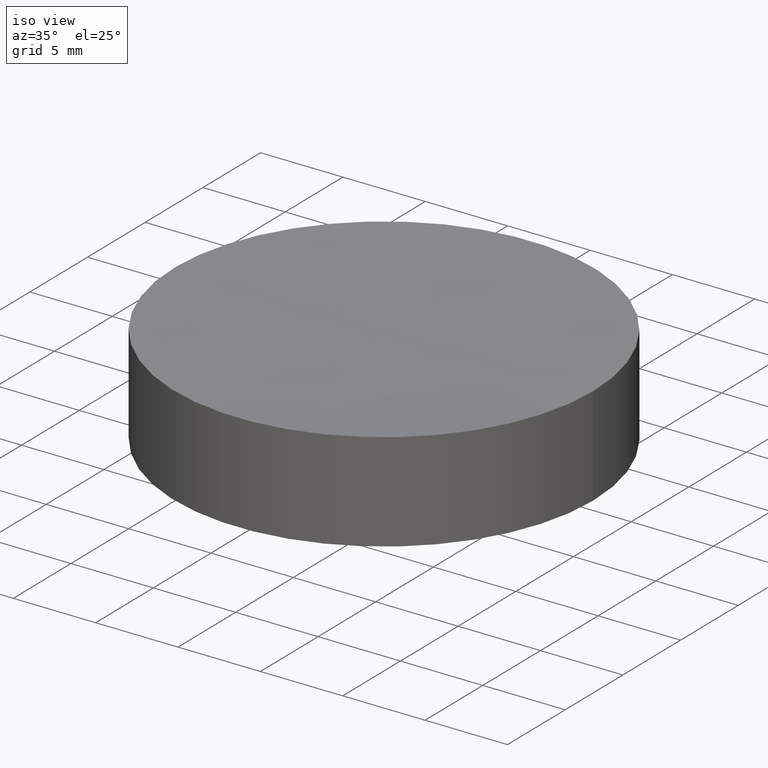
[diagram: clean part render]
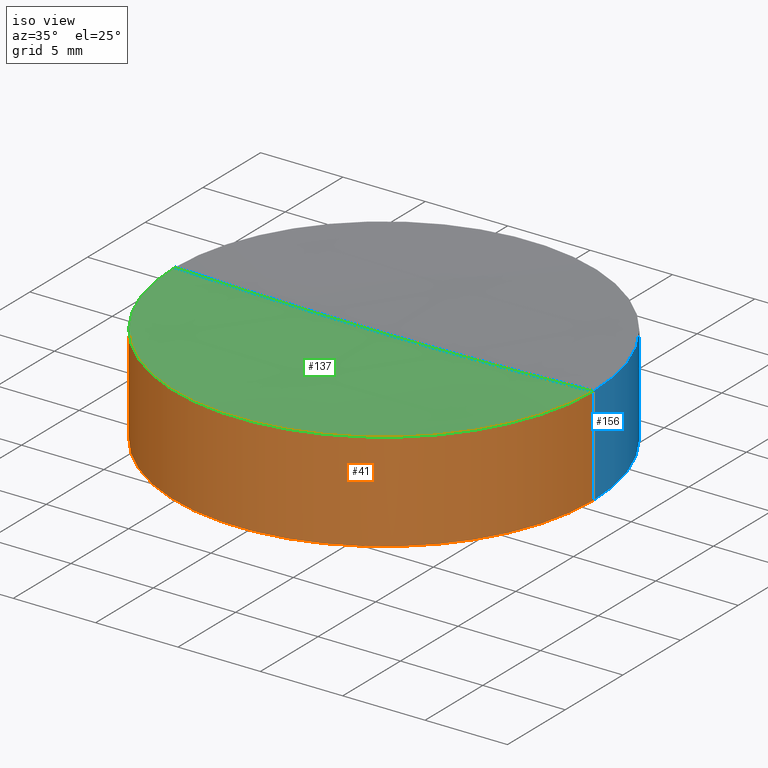
[diagram: same view with three faces highlighted in distinct colors, each labeled with its STEP entity id]
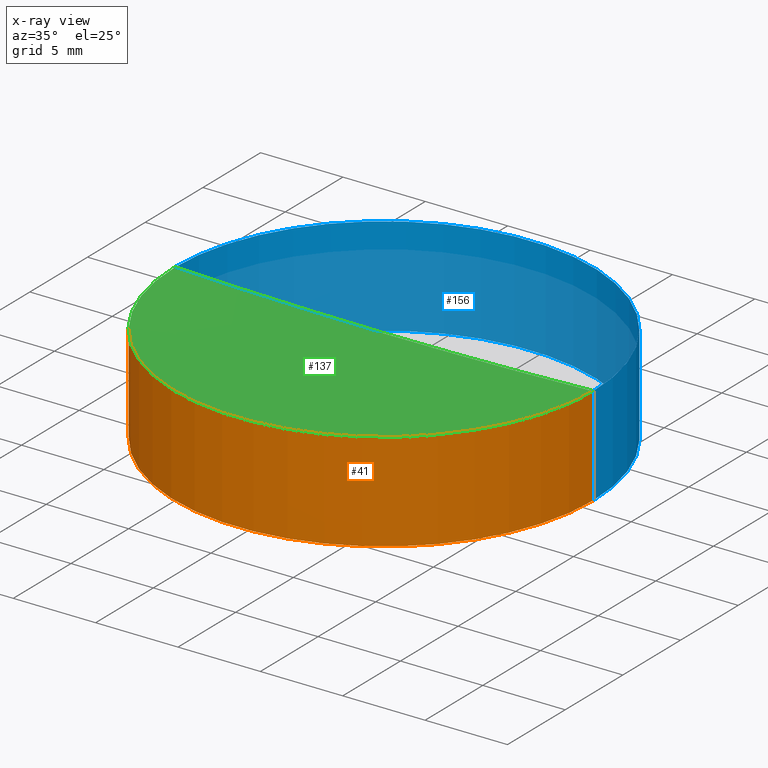
[diagram: x-ray of the same camera — body ghosted, the three highlighted faces saturated]
A machine part, iso view with three faces highlighted in distinct colors.
The next image is the same camera in x-ray (body ghosted, the three faces saturated) — at least one of them is partly hidden behind the body in this view.
Their STEP definitions:

[orange] entity #41 — the highlighted cylindrical surface (partial cylindrical patch) has radius 12.7 mm, axis along (-0, -0, -1).
#1 = VECTOR ( 'NONE', #40, 1000.000000000000000 ) ;
#3 = EDGE_LOOP ( 'NONE', ( #187, #109, #131, #34 ) ) ;
#4 = EDGE_CURVE ( 'NONE', #97, #45, #135, .T. ) ;
#6 = CARTESIAN_POINT ( 'NONE',  ( -12.69999999999999929, 0.000000000000000000, 0.000000000000000000 ) ) ;
#8 = FACE_OUTER_BOUND ( 'NONE', #3, .T. ) ;
#9 = CARTESIAN_POINT ( 'NONE',  ( 4.510281037539698445E-14, 0.000000000000000000, 6.000000000000005329 ) ) ;
#15 = VECTOR ( 'NONE', #146, 1000.000000000000000 ) ;
#21 = LINE ( 'NONE', #133, #1 ) ;
#22 = DIRECTION ( 'NONE',  ( 0.000000000000000000, 0.000000000000000000, 1.000000000000000000 ) ) ;
#24 = CARTESIAN_POINT ( 'NONE',  ( 0.000000000000000000, 0.000000000000000000, 6.000000000000000000 ) ) ;
#34 = ORIENTED_EDGE ( 'NONE', *, *, #185, .T. ) ;
#35 = DIRECTION ( 'NONE',  ( 1.000000000000000000, 0.000000000000000000, 0.000000000000000000 ) ) ;
#40 = DIRECTION ( 'NONE',  ( -0.000000000000000000, -0.000000000000000000, -1.000000000000000000 ) ) ;
#41 = ADVANCED_FACE ( 'NONE', ( #8 ), #72, .T. ) ;
#45 = VERTEX_POINT ( 'NONE', #147 ) ;
#46 = VERTEX_POINT ( 'NONE', #6 ) ;
#55 = DIRECTION ( 'NONE',  ( 1.000000000000000000, 0.000000000000000000, 0.000000000000000000 ) ) ;
#56 = AXIS2_PLACEMENT_3D ( 'NONE', #24, #117, #84 ) ;
#65 = CIRCLE ( 'NONE', #119, 12.69999999999999929 ) ;
#67 = AXIS2_PLACEMENT_3D ( 'NONE', #9, #68, #35 ) ;
#68 = DIRECTION ( 'NONE',  ( -0.000000000000000000, -0.000000000000000000, -1.000000000000000000 ) ) ;
#72 = CYLINDRICAL_SURFACE ( 'NONE', #56, 12.69999999999999929 ) ;
#84 = DIRECTION ( 'NONE',  ( -1.000000000000000000, 0.000000000000000000, 0.000000000000000000 ) ) ;
#97 = VERTEX_POINT ( 'NONE', #98 ) ;
#98 = CARTESIAN_POINT ( 'NONE',  ( 12.69999999999982698, 1.555301434917128177E-15, 6.000000000000005329 ) ) ;
#99 = CARTESIAN_POINT ( 'NONE',  ( 0.000000000000000000, 0.000000000000000000, 0.000000000000000000 ) ) ;
#108 = CIRCLE ( 'NONE', #67, 12.69999999999978257 ) ;
#109 = ORIENTED_EDGE ( 'NONE', *, *, #116, .T. ) ;
#116 = EDGE_CURVE ( 'NONE', #97, #158, #108, .T. ) ;
#117 = DIRECTION ( 'NONE',  ( -0.000000000000000000, -0.000000000000000000, -1.000000000000000000 ) ) ;
#119 = AXIS2_PLACEMENT_3D ( 'NONE', #99, #22, #55 ) ;
#131 = ORIENTED_EDGE ( 'NONE', *, *, #199, .T. ) ;
#133 = CARTESIAN_POINT ( 'NONE',  ( -12.69999999999999929, 0.000000000000000000, 6.000000000000000000 ) ) ;
#135 = LINE ( 'NONE', #192, #15 ) ;
#146 = DIRECTION ( 'NONE',  ( -0.000000000000000000, -0.000000000000000000, -1.000000000000000000 ) ) ;
#147 = CARTESIAN_POINT ( 'NONE',  ( 12.69999999999999929, 1.555301434917138433E-15, 0.000000000000000000 ) ) ;
#158 = VERTEX_POINT ( 'NONE', #175 ) ;
#175 = CARTESIAN_POINT ( 'NONE',  ( -12.69999999999973817, 0.000000000000000000, 6.000000000000005329 ) ) ;
#185 = EDGE_CURVE ( 'NONE', #46, #45, #65, .T. ) ;
#187 = ORIENTED_EDGE ( 'NONE', *, *, #4, .F. ) ;
#192 = CARTESIAN_POINT ( 'NONE',  ( 12.69999999999999929, 1.555301434917138433E-15, 6.000000000000000000 ) ) ;
#199 = EDGE_CURVE ( 'NONE', #158, #46, #21, .T. ) ;

[blue] entity #156 — the highlighted cylindrical surface (partial cylindrical patch) has radius 12.7 mm, axis along (-0, -0, -1).
#1 = VECTOR ( 'NONE', #40, 1000.000000000000000 ) ;
#4 = EDGE_CURVE ( 'NONE', #97, #45, #135, .T. ) ;
#6 = CARTESIAN_POINT ( 'NONE',  ( -12.69999999999999929, 0.000000000000000000, 0.000000000000000000 ) ) ;
#15 = VECTOR ( 'NONE', #146, 1000.000000000000000 ) ;
#18 = EDGE_LOOP ( 'NONE', ( #66, #188, #83, #191 ) ) ;
#19 = CIRCLE ( 'NONE', #74, 12.69999999999978257 ) ;
#21 = LINE ( 'NONE', #133, #1 ) ;
#36 = AXIS2_PLACEMENT_3D ( 'NONE', #134, #150, #47 ) ;
#38 = DIRECTION ( 'NONE',  ( 1.000000000000000000, 0.000000000000000000, 0.000000000000000000 ) ) ;
#40 = DIRECTION ( 'NONE',  ( -0.000000000000000000, -0.000000000000000000, -1.000000000000000000 ) ) ;
#45 = VERTEX_POINT ( 'NONE', #147 ) ;
#46 = VERTEX_POINT ( 'NONE', #6 ) ;
#47 = DIRECTION ( 'NONE',  ( 1.000000000000000000, 0.000000000000000000, 0.000000000000000000 ) ) ;
#48 = DIRECTION ( 'NONE',  ( -0.000000000000000000, -0.000000000000000000, -1.000000000000000000 ) ) ;
#53 = DIRECTION ( 'NONE',  ( -0.000000000000000000, -0.000000000000000000, -1.000000000000000000 ) ) ;
#64 = EDGE_CURVE ( 'NONE', #45, #46, #170, .T. ) ;
#66 = ORIENTED_EDGE ( 'NONE', *, *, #151, .T. ) ;
#74 = AXIS2_PLACEMENT_3D ( 'NONE', #115, #53, #38 ) ;
#83 = ORIENTED_EDGE ( 'NONE', *, *, #64, .T. ) ;
#97 = VERTEX_POINT ( 'NONE', #98 ) ;
#98 = CARTESIAN_POINT ( 'NONE',  ( 12.69999999999982698, 1.555301434917128177E-15, 6.000000000000005329 ) ) ;
#101 = FACE_OUTER_BOUND ( 'NONE', #18, .T. ) ;
#115 = CARTESIAN_POINT ( 'NONE',  ( 4.510281037539698445E-14, 0.000000000000000000, 6.000000000000005329 ) ) ;
#133 = CARTESIAN_POINT ( 'NONE',  ( -12.69999999999999929, 0.000000000000000000, 6.000000000000000000 ) ) ;
#134 = CARTESIAN_POINT ( 'NONE',  ( 0.000000000000000000, 0.000000000000000000, 0.000000000000000000 ) ) ;
#135 = LINE ( 'NONE', #192, #15 ) ;
#146 = DIRECTION ( 'NONE',  ( -0.000000000000000000, -0.000000000000000000, -1.000000000000000000 ) ) ;
#147 = CARTESIAN_POINT ( 'NONE',  ( 12.69999999999999929, 1.555301434917138433E-15, 0.000000000000000000 ) ) ;
#150 = DIRECTION ( 'NONE',  ( 0.000000000000000000, 0.000000000000000000, 1.000000000000000000 ) ) ;
#151 = EDGE_CURVE ( 'NONE', #158, #97, #19, .T. ) ;
#156 = ADVANCED_FACE ( 'NONE', ( #101 ), #193, .T. ) ;
#158 = VERTEX_POINT ( 'NONE', #175 ) ;
#163 = CARTESIAN_POINT ( 'NONE',  ( 0.000000000000000000, 0.000000000000000000, 6.000000000000000000 ) ) ;
#170 = CIRCLE ( 'NONE', #36, 12.69999999999999929 ) ;
#175 = CARTESIAN_POINT ( 'NONE',  ( -12.69999999999973817, 0.000000000000000000, 6.000000000000005329 ) ) ;
#179 = DIRECTION ( 'NONE',  ( -1.000000000000000000, 0.000000000000000000, 0.000000000000000000 ) ) ;
#186 = AXIS2_PLACEMENT_3D ( 'NONE', #163, #48, #179 ) ;
#188 = ORIENTED_EDGE ( 'NONE', *, *, #4, .T. ) ;
#191 = ORIENTED_EDGE ( 'NONE', *, *, #199, .F. ) ;
#192 = CARTESIAN_POINT ( 'NONE',  ( 12.69999999999999929, 1.555301434917138433E-15, 6.000000000000000000 ) ) ;
#193 = CYLINDRICAL_SURFACE ( 'NONE', #186, 12.69999999999999929 ) ;
#199 = EDGE_CURVE ( 'NONE', #158, #46, #21, .T. ) ;

[green] entity #137 — the highlighted spherical surface has radius 350 mm.
#2 = ORIENTED_EDGE ( 'NONE', *, *, #116, .F. ) ;
#9 = CARTESIAN_POINT ( 'NONE',  ( 4.510281037539698445E-14, 0.000000000000000000, 6.000000000000005329 ) ) ;
#17 = EDGE_LOOP ( 'NONE', ( #144, #2, #80 ) ) ;
#25 = DIRECTION ( 'NONE',  ( 0.000000000000000000, 1.000000000000000000, -0.000000000000000000 ) ) ;
#35 = DIRECTION ( 'NONE',  ( 1.000000000000000000, 0.000000000000000000, 0.000000000000000000 ) ) ;
#49 = AXIS2_PLACEMENT_3D ( 'NONE', #86, #25, #71 ) ;
#52 = EDGE_CURVE ( 'NONE', #97, #143, #189, .T. ) ;
#67 = AXIS2_PLACEMENT_3D ( 'NONE', #9, #68, #35 ) ;
#68 = DIRECTION ( 'NONE',  ( -0.000000000000000000, -0.000000000000000000, -1.000000000000000000 ) ) ;
#71 = DIRECTION ( 'NONE',  ( 0.000000000000000000, 0.000000000000000000, 1.000000000000000000 ) ) ;
#78 = EDGE_CURVE ( 'NONE', #158, #143, #167, .T. ) ;
#79 = AXIS2_PLACEMENT_3D ( 'NONE', #159, #82, #145 ) ;
#80 = ORIENTED_EDGE ( 'NONE', *, *, #52, .T. ) ;
#82 = DIRECTION ( 'NONE',  ( 0.000000000000000000, -1.000000000000000000, -0.000000000000000000 ) ) ;
#86 = CARTESIAN_POINT ( 'NONE',  ( 4.510281037539698445E-14, 0.000000000000000000, 355.7695098203958537 ) ) ;
#97 = VERTEX_POINT ( 'NONE', #98 ) ;
#98 = CARTESIAN_POINT ( 'NONE',  ( 12.69999999999982698, 1.555301434917128177E-15, 6.000000000000005329 ) ) ;
#102 = AXIS2_PLACEMENT_3D ( 'NONE', #177, #112, #114 ) ;
#108 = CIRCLE ( 'NONE', #67, 12.69999999999978257 ) ;
#112 = DIRECTION ( 'NONE',  ( 1.224646799147353207E-16, -1.000000000000000000, 0.000000000000000000 ) ) ;
#114 = DIRECTION ( 'NONE',  ( 1.000000000000000000, 1.224646799147353207E-16, 0.000000000000000000 ) ) ;
#116 = EDGE_CURVE ( 'NONE', #97, #158, #108, .T. ) ;
#118 = SPHERICAL_SURFACE ( 'NONE', #79, 350.0000000000000000 ) ;
#132 = CARTESIAN_POINT ( 'NONE',  ( 6.653412936047567325E-14, 0.000000000000000000, 5.769509820395867905 ) ) ;
#137 = ADVANCED_FACE ( 'NONE', ( #195 ), #118, .F. ) ;
#143 = VERTEX_POINT ( 'NONE', #132 ) ;
#144 = ORIENTED_EDGE ( 'NONE', *, *, #78, .F. ) ;
#145 = DIRECTION ( 'NONE',  ( 1.000000000000000000, 0.000000000000000000, 0.000000000000000000 ) ) ;
#158 = VERTEX_POINT ( 'NONE', #175 ) ;
#159 = CARTESIAN_POINT ( 'NONE',  ( 4.510281037539698445E-14, 0.000000000000000000, 355.7695098203958537 ) ) ;
#167 = CIRCLE ( 'NONE', #102, 350.0000000000000000 ) ;
#175 = CARTESIAN_POINT ( 'NONE',  ( -12.69999999999973817, 0.000000000000000000, 6.000000000000005329 ) ) ;
#177 = CARTESIAN_POINT ( 'NONE',  ( 4.510281037539698445E-14, 0.000000000000000000, 355.7695098203958537 ) ) ;
#189 = CIRCLE ( 'NONE', #49, 349.9999999999999432 ) ;
#195 = FACE_OUTER_BOUND ( 'NONE', #17, .T. ) ;